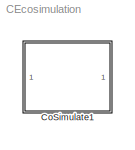
MODEL CEcosimulation
KIND library
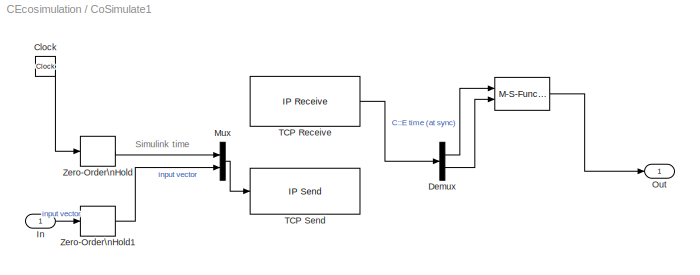
BLOCK [SubSystem] CoSimulate1
  AncestorBlock = CEcosimulation/CoSimulate
  Description = This block can be used to exchange data with Chrono::Engine.                                                                                      \nA Chrono::Engine program with a running ChCosimulation inferface must be started, it will work as a server; then the Simulink program must be run.\nNote! check that the dimensions of the exchanged vectors do match!
  FunctionWithSeparateData = off
  MaskCallbackString = ||||
  MaskDisplay = image(imread('block_logo.png'))\ndisp('C::E                   ')
  MaskEnableString = on,on,on,on,on
  MaskHideContents = off
  MaskIconFrame = on
  MaskIconOpaque = on
  MaskIconRotate = none
  MaskIconUnits = autoscale
  MaskInitialization = block_receive = [gcb, '/TCP Receive'];\nset_param(block_receive, 'SampleTime', num2str(com_step));\nset_param(block_receive, 'Host', host_name);\nset_param(block_receive, 'Port', num2str(tcp_port));\nset_param(block_receive, 'DataSize', num2str(tcp_data_size+1));\nset_param(block_receive, 'Timeout', num2str(tcp_timeout));\nblock_send = [gcb, '/TCP Send'];\nset_param(block_send, 'Host', host_name);...<+51ch>
  MaskPortRotate = default
  MaskPromptString = Communication step size|N. of scalars received from C::E (as block output)|TCP host name (ex. 'localhost', or 'www.myhost.com')|TCP port (ex. 50007)|TCP timeout (seconds)
  MaskStyleString = edit,edit,edit,edit,edit
  MaskToolTipString = on,on,on,on,on
  MaskTunableValueString = off,off,off,off,off
  MaskValueString = 0.001|2|localhost|50009|15
  MaskVariables = com_step=@1;tcp_data_size=@2;host_name=&3;tcp_port=&4;tcp_timeout=&5;
  MaskVisibilityString = on,on,on,on,on
  MinAlgLoopOccurrences = off
  Opaque = off
  Ports = [1, 1]
  Priority = 100
  PropExecContextOutsideSubsystem = off
  RTWSystemCode = Auto
  RequestExecContextInheritance = off
  SID = 23
BLOCK [M-S-Function] CoSimulate1/ 
  FunctionName = CEcosimulation_interp
  Ports = [2, 1]
  SID = 23
BLOCK [Clock] CoSimulate1/Clock
  Decimation = 10
  SID = 14
BLOCK [Demux] CoSimulate1/Demux
  DisplayOption = bar
  Outputs = [1 -1]
  Ports = [1, 2]
  SID = 15
BLOCK [Inport] CoSimulate1/In
  IconDisplay = Port number
  SID = 13
BLOCK [Mux] CoSimulate1/Mux
  DisplayOption = bar
  Inputs = 2
  Ports = [2, 1]
  SID = 16
BLOCK [Outport] CoSimulate1/Out
  IconDisplay = Port number
  SID = 22
BLOCK [Reference] CoSimulate1/TCP Receive  REF=instrumentlib/TCP//IP Receive
  ByteOrder = LittleEndian
  DataSize = 3
  DataType = double
  DialogController = instrumentcreatedialog
  DialogControllerArgs = DataTag0
  EnableBlockingMode = on
  Host = localhost
  Port = 50009
  Ports = [0, 1]
  Priority = 1
  SID = 17
  SampleTime = 0.001
  SourceBlock = instrumentlib/TCP//IP Receive
  SourceType = TCP/IP Receive
  Timeout = 15
BLOCK [Reference] CoSimulate1/TCP Send  REF=instrumentlib/TCP//IP Send
  ByteOrder = LittleEndian
  DialogController = instrumentcreatedialog
  DialogControllerArgs = DataTag1
  EnableBlockingMode = on
  Host = localhost
  Port = 50009
  Ports = [1]
  Priority = 2
  SID = 18
  SourceBlock = instrumentlib/TCP//IP Send
  SourceType = TCP/IP Send
  Timeout = 10
BLOCK [ZeroOrderHold] CoSimulate1/Zero-Order\nHold
  Priority = 0
  SID = 20
  SampleTime = com_step
BLOCK [ZeroOrderHold] CoSimulate1/Zero-Order\nHold1
  Priority = 0
  SID = 21
  SampleTime = com_step
ANNOTATION CoSimulate1: Simulink time
LINE CoSimulate1/ :1 -> CoSimulate1/Out:1
LINE CoSimulate1/Clock:1 -> CoSimulate1/Zero-Order\nHold:1
LINE CoSimulate1/Demux:1 -> CoSimulate1/ :1
LINE CoSimulate1/Demux:2 -> CoSimulate1/ :2
LINE CoSimulate1/In:1 -> CoSimulate1/Zero-Order\nHold1:1
LINE CoSimulate1/Mux:1 -> CoSimulate1/TCP Send:1
LINE CoSimulate1/TCP Receive:1 -> CoSimulate1/Demux:1
LINE CoSimulate1/Zero-Order\nHold1:1 -> CoSimulate1/Mux:2
LINE CoSimulate1/Zero-Order\nHold:1 -> CoSimulate1/Mux:1
